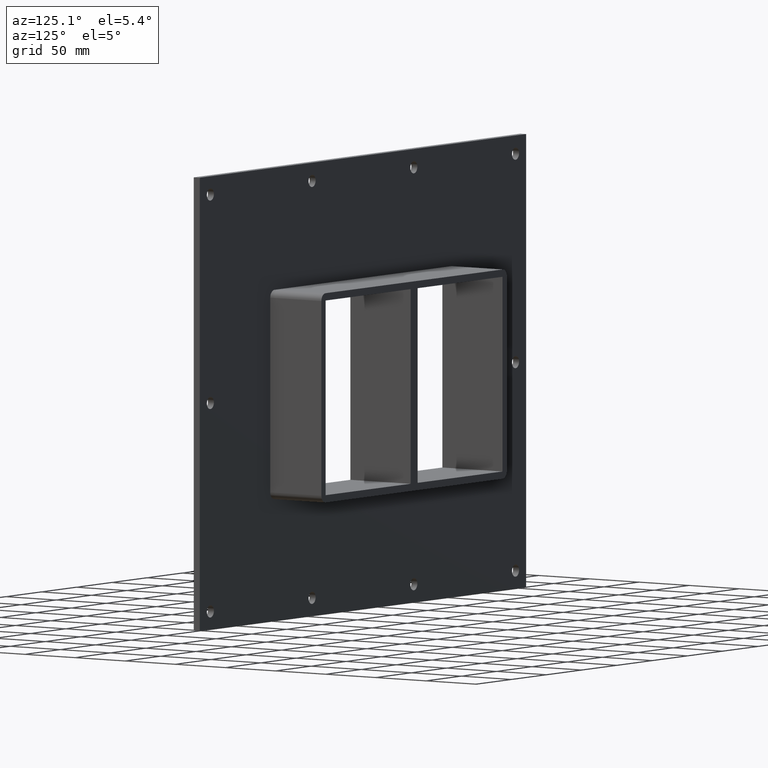
[diagram: clean part render]
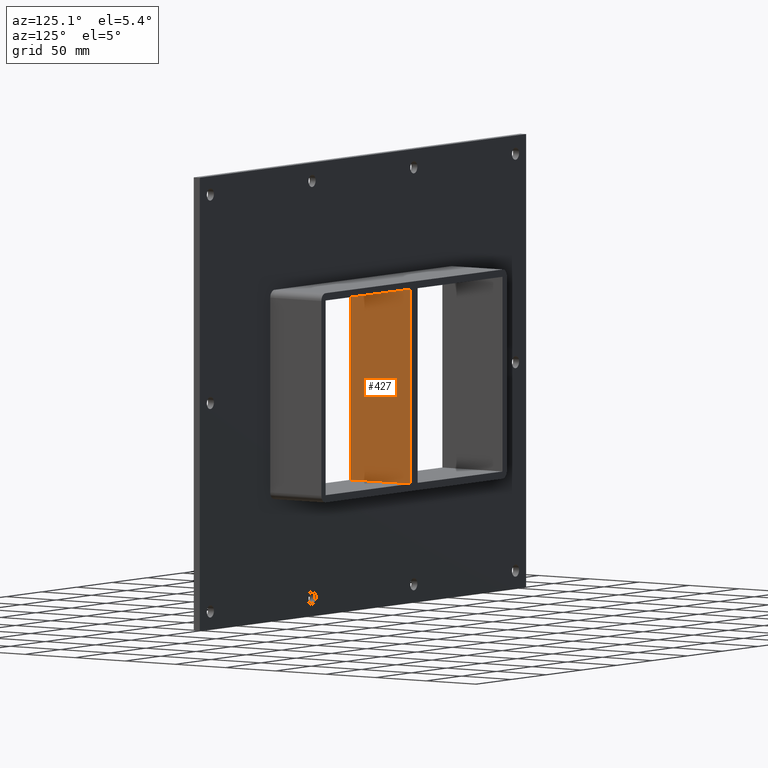
[diagram: same view with one face highlighted and labeled with its STEP entity id]
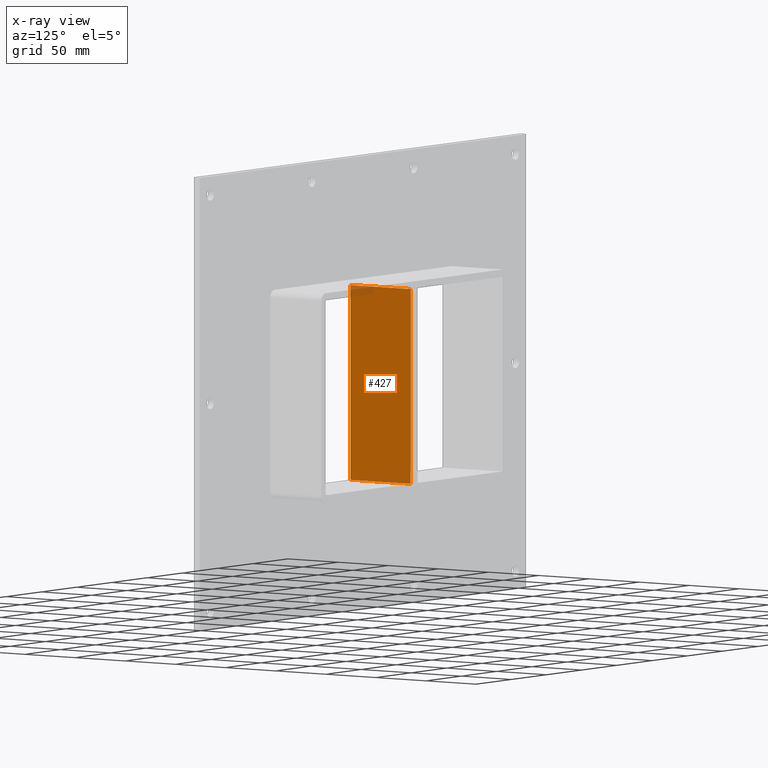
[diagram: x-ray of the same camera — body ghosted, the highlighted face saturated]
A machine part, auxiliary view. The second image highlights one B-rep face of the part: STEP entity #427.
The next image is the same camera in x-ray: the body ghosted, the highlighted face saturated — about 2% of this face is hidden behind the body in this view.
In plain terms, the highlighted planar face has unit normal (1, 0, 0).
Its self-contained STEP definition (entity closure, byte-faithful):
#388=CARTESIAN_POINT('',(5.0,-3.0,79.750000000000014));
#389=DIRECTION('',(1.0,0.0,0.0));
#390=DIRECTION('',(0.0,0.0,-1.0));
#391=AXIS2_PLACEMENT_3D('',#388,#389,#390);
#392=PLANE('',#391);
#393=CARTESIAN_POINT('',(5.0,-3.0,79.750000000000014));
#394=VERTEX_POINT('',#393);
#395=CARTESIAN_POINT('',(5.0,-3.0,-79.74999999998424));
#396=VERTEX_POINT('',#395);
#397=CARTESIAN_POINT('',(5.0,-3.0,79.750000000000014));
#398=DIRECTION('',(0.0,0.0,-1.0));
#399=VECTOR('',#398,159.49999999998425);
#400=LINE('',#397,#399);
#401=EDGE_CURVE('',#394,#396,#400,.T.);
#402=ORIENTED_EDGE('',*,*,#401,.T.);
#403=CARTESIAN_POINT('',(5.0,57.0,-79.74999999998424));
#404=VERTEX_POINT('',#403);
#405=CARTESIAN_POINT('',(5.0,57.000000000000007,-79.750000000000014));
#406=DIRECTION('',(0.0,-1.0,0.0));
#407=VECTOR('',#406,60.000000000000007);
#408=LINE('',#405,#407);
#409=EDGE_CURVE('',#404,#396,#408,.T.);
#410=ORIENTED_EDGE('',*,*,#409,.F.);
#411=CARTESIAN_POINT('',(5.0,57.0,79.750000000000014));
#412=VERTEX_POINT('',#411);
#413=CARTESIAN_POINT('',(5.0,57.0,79.750000000000014));
#414=DIRECTION('',(0.0,0.0,-1.0));
#415=VECTOR('',#414,159.49999999998425);
#416=LINE('',#413,#415);
#417=EDGE_CURVE('',#412,#404,#416,.T.);
#418=ORIENTED_EDGE('',*,*,#417,.F.);
#419=CARTESIAN_POINT('',(5.0,-3.0,79.750000000000014));
#420=DIRECTION('',(0.0,1.0,0.0));
#421=VECTOR('',#420,60.000000000000007);
#422=LINE('',#419,#421);
#423=EDGE_CURVE('',#394,#412,#422,.T.);
#424=ORIENTED_EDGE('',*,*,#423,.F.);
#425=EDGE_LOOP('',(#402,#410,#418,#424));
#426=FACE_OUTER_BOUND('',#425,.T.);
#427=ADVANCED_FACE('',(#426),#392,.T.);